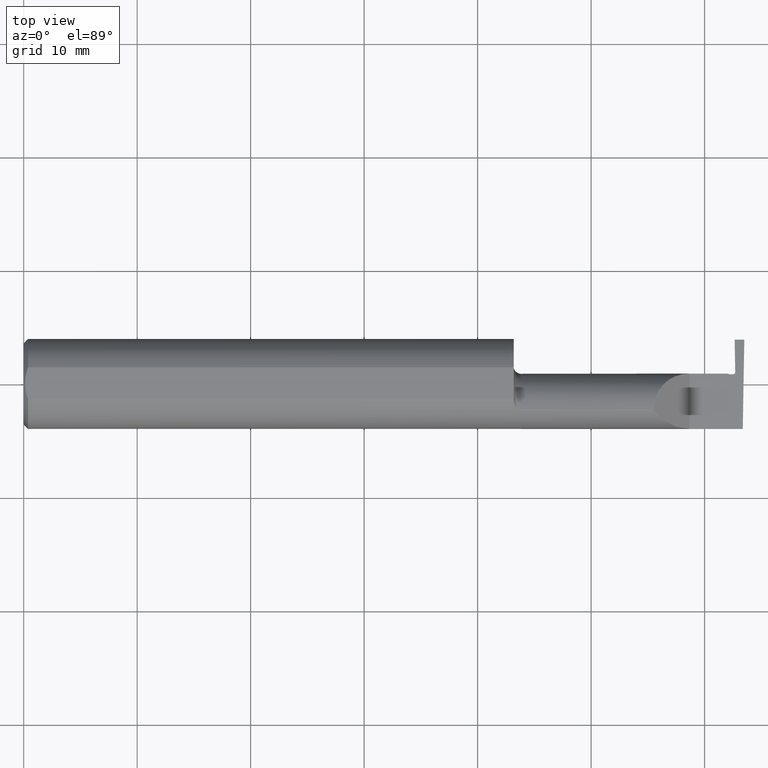
[diagram: clean part render]
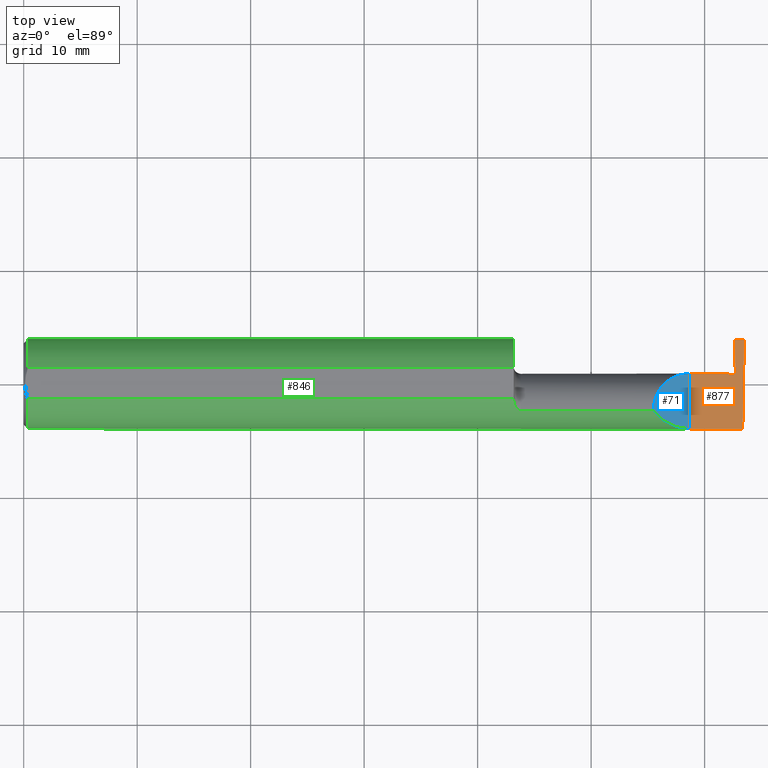
[diagram: same view with three faces highlighted in distinct colors, each labeled with its STEP entity id]
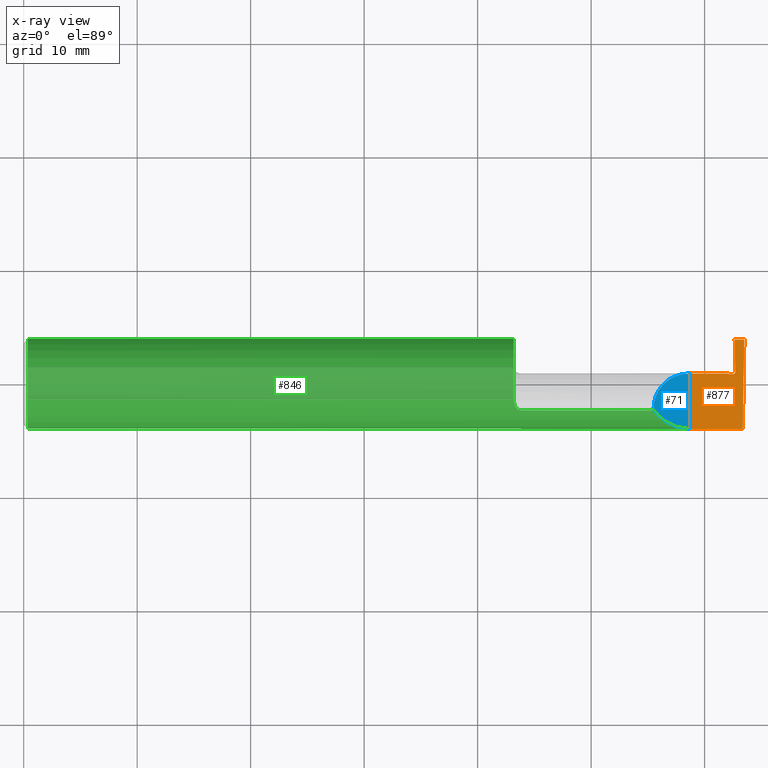
[diagram: x-ray of the same camera — body ghosted, the three highlighted faces saturated]
A machine part, top view with three faces highlighted in distinct colors.
The next image is the same camera in x-ray (body ghosted, the three faces saturated) — at least one of them is partly hidden behind the body in this view.
Their STEP definitions:

[orange] entity #877 — the highlighted planar face has unit normal (-0, 0, -1).
#6 = CARTESIAN_POINT ( 'NONE',  ( 2.310000000000000053, -0.2000000000000000111, 2.326828918379970872E-17 ) ) ;
#19 = CARTESIAN_POINT ( 'NONE',  ( 2.468542847896572301, 0.03686532263356515071, -1.229295649122165528E-10 ) ) ;
#36 = CARTESIAN_POINT ( 'NONE',  ( 2.500000000000000000, 0.1539000000000000090, 0.000000000000000000 ) ) ;
#47 = B_SPLINE_CURVE_WITH_KNOTS ( 'NONE', 1,
 ( #882, #893 ),
 .UNSPECIFIED., .F., .F.,
 ( 2, 2 ),
 ( 6.845491007851898374E-15, 0.002867533701434277216 ),
 .UNSPECIFIED. ) ;
#52 = DIRECTION ( 'NONE',  ( -1.224646799147353700E-16, 0.000000000000000000, -1.000000000000000000 ) ) ;
#60 = VERTEX_POINT ( 'NONE', #373 ) ;
#78 = B_SPLINE_CURVE_WITH_KNOTS ( 'NONE', 1,
 ( #391, #725 ),
 .UNSPECIFIED., .F., .F.,
 ( 2, 2 ),
 ( 0.000000000000000000, 0.0003802724434284338040 ),
 .UNSPECIFIED. ) ;
#99 = VERTEX_POINT ( 'NONE', #906 ) ;
#123 = PLANE ( 'NONE',  #972 ) ;
#172 = EDGE_CURVE ( 'NONE', #874, #1042, #752, .T. ) ;
#181 = ORIENTED_EDGE ( 'NONE', *, *, #1076, .F. ) ;
#189 = CARTESIAN_POINT ( 'NONE',  ( 2.468470289915451144, 0.04102216684466004210, -1.256631166235876803E-10 ) ) ;
#197 = ORIENTED_EDGE ( 'NONE', *, *, #361, .T. ) ;
#212 = DIRECTION ( 'NONE',  ( 1.000000000000000000, 0.000000000000000000, 0.000000000000000000 ) ) ;
#215 = ORIENTED_EDGE ( 'NONE', *, *, #634, .F. ) ;
#231 = FACE_OUTER_BOUND ( 'NONE', #929, .T. ) ;
#235 = LINE ( 'NONE', #732, #622 ) ;
#239 = VERTEX_POINT ( 'NONE', #385 ) ;
#242 = VECTOR ( 'NONE', #647, 39.37007874015748143 ) ;
#249 = LINE ( 'NONE', #6, #672 ) ;
#253 = B_SPLINE_CURVE_WITH_KNOTS ( 'NONE', 1,
 ( #832, #402 ),
 .UNSPECIFIED., .F., .F.,
 ( 2, 2 ),
 ( 0.000000000000000000, 7.184204902311108558E-05 ),
 .UNSPECIFIED. ) ;
#279 = VERTEX_POINT ( 'NONE', #707 ) ;
#292 = VECTOR ( 'NONE', #1032, 39.37007874015748143 ) ;
#307 = VERTEX_POINT ( 'NONE', #36 ) ;
#313 = CARTESIAN_POINT ( 'NONE',  ( 2.399999999999999911, 0.1539000000000000090, -2.694222958124035986E-19 ) ) ;
#337 = EDGE_CURVE ( 'NONE', #60, #585, #47, .T. ) ;
#343 = EDGE_CURVE ( 'NONE', #239, #279, #235, .T. ) ;
#345 = CARTESIAN_POINT ( 'NONE',  ( 2.465628833460029146, 0.03389999999987937385, -1.205295658583310168E-10 ) ) ;
#361 = EDGE_CURVE ( 'NONE', #99, #670, #78, .T. ) ;
#365 = LINE ( 'NONE', #773, #618 ) ;
#373 = CARTESIAN_POINT ( 'NONE',  ( 2.466499999986527136, 0.1539000000000000090, -2.694222958124035986E-19 ) ) ;
#377 = ORIENTED_EDGE ( 'NONE', *, *, #765, .F. ) ;
#385 = CARTESIAN_POINT ( 'NONE',  ( 2.310000000000000053, 0.03589999999999998748, 2.326828918379970872E-17 ) ) ;
#391 = CARTESIAN_POINT ( 'NONE',  ( 2.461471356043865466, 0.03389999999999760566, -4.703959171106423870E-11 ) ) ;
#392 = CARTESIAN_POINT ( 'NONE',  ( 2.500000000000000000, -0.2000000000000000111, 0.000000000000000000 ) ) ;
#402 = CARTESIAN_POINT ( 'NONE',  ( 2.444500000000001450, 0.03590000000000021646, 7.028497217765240013E-18 ) ) ;
#439 = ORIENTED_EDGE ( 'NONE', *, *, #337, .T. ) ;
#470 = CARTESIAN_POINT ( 'NONE',  ( 2.494588929872255001, -0.1561000000000000443, 0.000000000000000000 ) ) ;
#509 = ORIENTED_EDGE ( 'NONE', *, *, #343, .F. ) ;
#575 = EDGE_CURVE ( 'NONE', #585, #99, #758, .T. ) ;
#585 = VERTEX_POINT ( 'NONE', #189 ) ;
#604 = CARTESIAN_POINT ( 'NONE',  ( 2.461471356043865466, 0.03389999999999760566, -4.703959171106423870E-11 ) ) ;
#614 = ORIENTED_EDGE ( 'NONE', *, *, #788, .T. ) ;
#618 = VECTOR ( 'NONE', #856, 39.37007874015748143 ) ;
#622 = VECTOR ( 'NONE', #212, 39.37007874015748143 ) ;
#634 = EDGE_CURVE ( 'NONE', #307, #874, #365, .T. ) ;
#647 = DIRECTION ( 'NONE',  ( 1.000000000000000000, -0.000000000000000000, -0.000000000000000000 ) ) ;
#651 = ORIENTED_EDGE ( 'NONE', *, *, #172, .F. ) ;
#663 = CARTESIAN_POINT ( 'NONE',  ( 2.310000000000000053, -0.1560999999999999888, 2.326828918379970872E-17 ) ) ;
#670 = VERTEX_POINT ( 'NONE', #934 ) ;
#672 = VECTOR ( 'NONE', #918, 39.37007874015748143 ) ;
#693 = CARTESIAN_POINT ( 'NONE',  ( 3.749399456654646757E-32, -0.1560999999999999888, 3.061616997868384127E-16 ) ) ;
#707 = CARTESIAN_POINT ( 'NONE',  ( 2.444500000000001450, 0.03590000000000021646, 7.028497217765240013E-18 ) ) ;
#711 = ORIENTED_EDGE ( 'NONE', *, *, #575, .T. ) ;
#725 = CARTESIAN_POINT ( 'NONE',  ( 2.446500000003375419, 0.03390000000033663308, -4.831952167884444169E-11 ) ) ;
#732 = CARTESIAN_POINT ( 'NONE',  ( 1.699999999999999956, 0.03590000000000001523, 9.797174393178832313E-17 ) ) ;
#752 = LINE ( 'NONE', #693, #292 ) ;
#758 =( BOUNDED_CURVE ( )  B_SPLINE_CURVE ( 3, ( #870, #19, #345, #604 ),
 .UNSPECIFIED., .F., .F. ) 
 B_SPLINE_CURVE_WITH_KNOTS ( ( 4, 4 ),
 ( 8.673617379884047028E-19, 0.0002808519285672452697 ),
 .UNSPECIFIED. ) 
 CURVE ( )  GEOMETRIC_REPRESENTATION_ITEM ( )  RATIONAL_B_SPLINE_CURVE ( ( 1.000000000000000000, 0.8006061761999023751, 0.8006061761999023751, 1.000000000000000000 ) ) 
 REPRESENTATION_ITEM ( '' )  );
#765 = EDGE_CURVE ( 'NONE', #60, #307, #903, .T. ) ;
#773 = CARTESIAN_POINT ( 'NONE',  ( 2.500000000000000000, 0.1539000000000000090, 0.000000000000000000 ) ) ;
#788 = EDGE_CURVE ( 'NONE', #670, #279, #253, .T. ) ;
#832 = CARTESIAN_POINT ( 'NONE',  ( 2.446500000003375419, 0.03390000000033663308, -4.831952167884444169E-11 ) ) ;
#856 = DIRECTION ( 'NONE',  ( -0.01745240643727716603, -0.9998476951563912696, 0.000000000000000000 ) ) ;
#870 = CARTESIAN_POINT ( 'NONE',  ( 2.468470289915451144, 0.04102216684466004210, -1.256631166235876803E-10 ) ) ;
#874 = VERTEX_POINT ( 'NONE', #470 ) ;
#877 = ADVANCED_FACE ( 'NONE', ( #231 ), #123, .F. ) ;
#882 = CARTESIAN_POINT ( 'NONE',  ( 2.466499999986527136, 0.1539000000000000090, -2.694222958124035986E-19 ) ) ;
#893 = CARTESIAN_POINT ( 'NONE',  ( 2.468470289915451144, 0.04102216684466004210, -1.256631166235876803E-10 ) ) ;
#903 = LINE ( 'NONE', #313, #242 ) ;
#906 = CARTESIAN_POINT ( 'NONE',  ( 2.461471356043865466, 0.03389999999999760566, -4.703959171106423870E-11 ) ) ;
#918 = DIRECTION ( 'NONE',  ( -0.000000000000000000, 1.000000000000000000, -0.000000000000000000 ) ) ;
#929 = EDGE_LOOP ( 'NONE', ( #651, #215, #377, #439, #711, #197, #614, #509, #181 ) ) ;
#934 = CARTESIAN_POINT ( 'NONE',  ( 2.446500000003375419, 0.03390000000033663308, -4.831952167884444169E-11 ) ) ;
#966 = DIRECTION ( 'NONE',  ( -1.000000000000000000, 0.000000000000000000, 1.224646799147353700E-16 ) ) ;
#972 = AXIS2_PLACEMENT_3D ( 'NONE', #392, #52, #966 ) ;
#1032 = DIRECTION ( 'NONE',  ( -1.000000000000000000, -0.000000000000000000, -0.000000000000000000 ) ) ;
#1042 = VERTEX_POINT ( 'NONE', #663 ) ;
#1076 = EDGE_CURVE ( 'NONE', #1042, #239, #249, .T. ) ;

[blue] entity #71 — the highlighted planar face has unit normal (-0.7071, 0, -0.7071).
#1 = CARTESIAN_POINT ( 'NONE',  ( 2.310000000000000053, -0.1560999999999999888, 2.326828918379970872E-17 ) ) ;
#6 = CARTESIAN_POINT ( 'NONE',  ( 2.310000000000000053, -0.2000000000000000111, 2.326828918379970872E-17 ) ) ;
#28 = PLANE ( 'NONE',  #750 ) ;
#71 = ADVANCED_FACE ( 'NONE', ( #1046 ), #28, .F. ) ;
#86 =( BOUNDED_CURVE ( )  B_SPLINE_CURVE ( 3, ( #1, #1015, #990, #379 ),
 .UNSPECIFIED., .F., .T. ) 
 B_SPLINE_CURVE_WITH_KNOTS ( ( 4, 4 ),
 ( 4.712388980384689674, 5.640097190903853530 ),
 .UNSPECIFIED. ) 
 CURVE ( )  GEOMETRIC_REPRESENTATION_ITEM ( )  RATIONAL_B_SPLINE_CURVE ( ( 1.000000000000000000, 0.9295565493311498395, 0.9295565493311498395, 1.000000000000000000 ) ) 
 REPRESENTATION_ITEM ( '' )  );
#111 = CARTESIAN_POINT ( 'NONE',  ( 2.310000000000000053, 0.03589999999999998748, 2.326828918379970872E-17 ) ) ;
#136 = CARTESIAN_POINT ( 'NONE',  ( 2.310000000000000053, -0.2000000000000000111, 2.326828918379970872E-17 ) ) ;
#164 = ORIENTED_EDGE ( 'NONE', *, *, #490, .F. ) ;
#166 = CARTESIAN_POINT ( 'NONE',  ( 2.185000000000000941, -0.09060321336276840054, 0.1250000000000000278 ) ) ;
#195 =( BOUNDED_CURVE ( )  B_SPLINE_CURVE ( 3, ( #744, #241, #166, #1085 ),
 .UNSPECIFIED., .F., .T. ) 
 B_SPLINE_CURVE_WITH_KNOTS ( ( 4, 4 ),
 ( 6.247110142813122380, 6.283185307179586232 ),
 .UNSPECIFIED. ) 
 CURVE ( )  GEOMETRIC_REPRESENTATION_ITEM ( )  RATIONAL_B_SPLINE_CURVE ( ( 1.000000000000000000, 0.9998915514833921492, 0.9998915514833921492, 1.000000000000000000 ) ) 
 REPRESENTATION_ITEM ( '' )  );
#201 = EDGE_CURVE ( 'NONE', #1042, #388, #86, .T. ) ;
#239 = VERTEX_POINT ( 'NONE', #385 ) ;
#241 = CARTESIAN_POINT ( 'NONE',  ( 2.185027112864299959, -0.09210618219364782866, 0.1249728871357007748 ) ) ;
#249 = LINE ( 'NONE', #6, #672 ) ;
#328 = ORIENTED_EDGE ( 'NONE', *, *, #652, .F. ) ;
#353 = CARTESIAN_POINT ( 'NONE',  ( 2.185000000000000941, -0.01587669529663685714, 0.1250000000000000278 ) ) ;
#358 = CARTESIAN_POINT ( 'NONE',  ( 2.236776695296637474, 0.03590000000000000829, 0.07322330470336313457 ) ) ;
#379 = CARTESIAN_POINT ( 'NONE',  ( 2.185081329771848768, -0.09360841750841755737, 0.1249186702281519651 ) ) ;
#385 = CARTESIAN_POINT ( 'NONE',  ( 2.310000000000000053, 0.03589999999999998748, 2.326828918379970872E-17 ) ) ;
#388 = VERTEX_POINT ( 'NONE', #1003 ) ;
#461 = DIRECTION ( 'NONE',  ( -0.7071067811865492381, 0.000000000000000000, -0.7071067811865459074 ) ) ;
#468 = CARTESIAN_POINT ( 'NONE',  ( 2.185000000000000941, -0.08909999999999998477, 0.1250000000000000000 ) ) ;
#490 = EDGE_CURVE ( 'NONE', #388, #747, #195, .T. ) ;
#493 = ORIENTED_EDGE ( 'NONE', *, *, #201, .F. ) ;
#652 = EDGE_CURVE ( 'NONE', #747, #239, #844, .T. ) ;
#663 = CARTESIAN_POINT ( 'NONE',  ( 2.310000000000000053, -0.1560999999999999888, 2.326828918379970872E-17 ) ) ;
#672 = VECTOR ( 'NONE', #918, 39.37007874015748143 ) ;
#700 = ORIENTED_EDGE ( 'NONE', *, *, #1076, .T. ) ;
#744 = CARTESIAN_POINT ( 'NONE',  ( 2.185081329771848768, -0.09360841750841755737, 0.1249186702281519651 ) ) ;
#747 = VERTEX_POINT ( 'NONE', #468 ) ;
#750 = AXIS2_PLACEMENT_3D ( 'NONE', #136, #461, #968 ) ;
#777 = CARTESIAN_POINT ( 'NONE',  ( 2.185000000000000941, -0.08909999999999998477, 0.1250000000000000000 ) ) ;
#844 =( BOUNDED_CURVE ( )  B_SPLINE_CURVE ( 3, ( #777, #353, #358, #111 ),
 .UNSPECIFIED., .F., .T. ) 
 B_SPLINE_CURVE_WITH_KNOTS ( ( 4, 4 ),
 ( 0.000000000000000000, 1.570796326794896558 ),
 .UNSPECIFIED. ) 
 CURVE ( )  GEOMETRIC_REPRESENTATION_ITEM ( )  RATIONAL_B_SPLINE_CURVE ( ( 1.000000000000000000, 0.8047378541243649375, 0.8047378541243649375, 1.000000000000000000 ) ) 
 REPRESENTATION_ITEM ( '' )  );
#918 = DIRECTION ( 'NONE',  ( -0.000000000000000000, 1.000000000000000000, -0.000000000000000000 ) ) ;
#931 = EDGE_LOOP ( 'NONE', ( #164, #493, #700, #328 ) ) ;
#968 = DIRECTION ( 'NONE',  ( -0.7071067811865459074, 0.000000000000000000, 0.7071067811865492381 ) ) ;
#990 = CARTESIAN_POINT ( 'NONE',  ( 2.215117332916550552, -0.1336908980339254205, 0.09488266708345004241 ) ) ;
#1003 = CARTESIAN_POINT ( 'NONE',  ( 2.185081329771848768, -0.09360841750841755737, 0.1249186702281519651 ) ) ;
#1015 = CARTESIAN_POINT ( 'NONE',  ( 2.259912409421232837, -0.1560999999999999888, 0.05008759057876772947 ) ) ;
#1042 = VERTEX_POINT ( 'NONE', #663 ) ;
#1046 = FACE_OUTER_BOUND ( 'NONE', #931, .T. ) ;
#1076 = EDGE_CURVE ( 'NONE', #1042, #239, #249, .T. ) ;
#1085 = CARTESIAN_POINT ( 'NONE',  ( 2.185000000000000941, -0.08909999999999998477, 0.1250000000000000000 ) ) ;

[green] entity #846 — the highlighted cylindrical surface (partial cylindrical patch) has radius 3.9649 mm, axis along (-1, -0, -0).
#1 = CARTESIAN_POINT ( 'NONE',  ( 2.310000000000000053, -0.1560999999999999888, 2.326828918379970872E-17 ) ) ;
#18 = ORIENTED_EDGE ( 'NONE', *, *, #538, .F. ) ;
#26 = EDGE_CURVE ( 'NONE', #267, #1007, #270, .T. ) ;
#32 = B_SPLINE_CURVE_WITH_KNOTS ( 'NONE', 3,
 ( #661, #495, #82, #482, #1017, #414, #749, #755 ),
 .UNSPECIFIED., .F., .F.,
 ( 4, 2, 2, 4 ),
 ( 2.042507625483139074E-06, 0.0005263182385139235754, 0.0007884561039581438387, 0.001050593969402363994 ),
 .UNSPECIFIED. ) ;
#38 = CARTESIAN_POINT ( 'NONE',  ( 1.720364775055372553, -0.09360841750841757125, 0.1249186702281519512 ) ) ;
#40 = ORIENTED_EDGE ( 'NONE', *, *, #26, .F. ) ;
#41 = CARTESIAN_POINT ( 'NONE',  ( 1.708312875394041308, -0.08466547365232440781, -0.1311808389156051691 ) ) ;
#44 = CARTESIAN_POINT ( 'NONE',  ( 2.449421300275350877, -0.09360841750841730757, -0.1249186702281520206 ) ) ;
#48 = EDGE_LOOP ( 'NONE', ( #920, #1091, #1060, #431, #1055, #401, #975, #741, #150, #274, #317, #40, #223, #696, #168, #516, #640, #245, #18 ) ) ;
#49 = LINE ( 'NONE', #818, #1000 ) ;
#61 = CARTESIAN_POINT ( 'NONE',  ( 2.454544682360471963, -0.09587255434380594077, -0.1231895957532970348 ) ) ;
#74 = CARTESIAN_POINT ( 'NONE',  ( 1.720361275910303522, -0.09360841750841759901, -0.1249186702281519512 ) ) ;
#79 = VERTEX_POINT ( 'NONE', #287 ) ;
#80 = CARTESIAN_POINT ( 'NONE',  ( 0.000000000000000000, 0.000000000000000000, 0.000000000000000000 ) ) ;
#82 = CARTESIAN_POINT ( 'NONE',  ( 1.700844056398637116, -0.06777540567362902446, 0.1407770456887921517 ) ) ;
#85 = VERTEX_POINT ( 'NONE', #794 ) ;
#86 =( BOUNDED_CURVE ( )  B_SPLINE_CURVE ( 3, ( #1, #1015, #990, #379 ),
 .UNSPECIFIED., .F., .T. ) 
 B_SPLINE_CURVE_WITH_KNOTS ( ( 4, 4 ),
 ( 4.712388980384689674, 5.640097190903853530 ),
 .UNSPECIFIED. ) 
 CURVE ( )  GEOMETRIC_REPRESENTATION_ITEM ( )  RATIONAL_B_SPLINE_CURVE ( ( 1.000000000000000000, 0.9295565493311498395, 0.9295565493311498395, 1.000000000000000000 ) ) 
 REPRESENTATION_ITEM ( '' )  );
#122 = CARTESIAN_POINT ( 'NONE',  ( 1.712810002172886259, -0.08909999999996048858, -0.1281733201567834268 ) ) ;
#127 = CARTESIAN_POINT ( 'NONE',  ( 1.699999999999999956, 0.05497272050753900657, 0.1460999999999999799 ) ) ;
#135 = CARTESIAN_POINT ( 'NONE',  ( 1.712810002172222346, -0.08909999999984934138, 0.1281733201569306146 ) ) ;
#140 = DIRECTION ( 'NONE',  ( 0.000000000000000000, 0.000000000000000000, 1.000000000000000000 ) ) ;
#150 = ORIENTED_EDGE ( 'NONE', *, *, #1033, .F. ) ;
#151 = CARTESIAN_POINT ( 'NONE',  ( 1.716077244708472893, -0.09172492714866099794, -0.1263485955677197681 ) ) ;
#152 = CARTESIAN_POINT ( 'NONE',  ( 2.467958605918126214, -0.09612678835017125778, -0.1229930940699261593 ) ) ;
#165 = CARTESIAN_POINT ( 'NONE',  ( 2.470920899338892252, -0.09360841750841730757, -0.1249186702281520484 ) ) ;
#168 = ORIENTED_EDGE ( 'NONE', *, *, #839, .F. ) ;
#172 = EDGE_CURVE ( 'NONE', #874, #1042, #752, .T. ) ;
#198 = CIRCLE ( 'NONE', #369, 0.1560999999999999888 ) ;
#201 = EDGE_CURVE ( 'NONE', #1042, #388, #86, .T. ) ;
#204 = CARTESIAN_POINT ( 'NONE',  ( 1.700847904676645372, -0.06780574120017832107, -0.1407631332654325773 ) ) ;
#206 = CIRCLE ( 'NONE', #277, 0.1560999999999999888 ) ;
#220 = EDGE_CURVE ( 'NONE', #598, #822, #206, .T. ) ;
#223 = ORIENTED_EDGE ( 'NONE', *, *, #836, .F. ) ;
#224 = CARTESIAN_POINT ( 'NONE',  ( 2.462020501176412690, -0.09623425573207612660, -0.1229071927256228242 ) ) ;
#226 = CARTESIAN_POINT ( 'NONE',  ( 2.449883294675948786, -0.09430673936945621616, -0.1243953793205239688 ) ) ;
#234 = DIRECTION ( 'NONE',  ( -1.000000000000000000, -0.000000000000000000, -0.000000000000000000 ) ) ;
#240 = CARTESIAN_POINT ( 'NONE',  ( 0.01499999999999999944, -0.05497272050753900657, 0.1460999999999999799 ) ) ;
#245 = ORIENTED_EDGE ( 'NONE', *, *, #756, .F. ) ;
#258 = CARTESIAN_POINT ( 'NONE',  ( 2.470372502178056262, -0.09436783887071170662, -0.1243495941099337643 ) ) ;
#259 = DIRECTION ( 'NONE',  ( 0.000000000000000000, 0.000000000000000000, -1.000000000000000000 ) ) ;
#264 = CARTESIAN_POINT ( 'NONE',  ( 2.470920899338892252, -0.09360841750841730757, -0.1249186702281520484 ) ) ;
#267 = VERTEX_POINT ( 'NONE', #127 ) ;
#270 = LINE ( 'NONE', #508, #398 ) ;
#274 = ORIENTED_EDGE ( 'NONE', *, *, #220, .F. ) ;
#277 = AXIS2_PLACEMENT_3D ( 'NONE', #808, #819, #140 ) ;
#287 = CARTESIAN_POINT ( 'NONE',  ( 2.450806800179778477, -0.09569100258184319585, -0.1233306207917630876 ) ) ;
#292 = VECTOR ( 'NONE', #1032, 39.37007874015748143 ) ;
#302 = VERTEX_POINT ( 'NONE', #122 ) ;
#308 = CARTESIAN_POINT ( 'NONE',  ( 1.705057722617700611, -0.07943655142502260846, -0.1344116409581928018 ) ) ;
#317 = ORIENTED_EDGE ( 'NONE', *, *, #1005, .F. ) ;
#318 = CARTESIAN_POINT ( 'NONE',  ( 1.724999999999999867, -0.09360841750841747411, 0.1249186702281520206 ) ) ;
#321 = CARTESIAN_POINT ( 'NONE',  ( 0.000000000000000000, -0.05497272050753900657, 0.1460999999999999799 ) ) ;
#324 = DIRECTION ( 'NONE',  ( 0.000000000000000000, 0.000000000000000000, -1.000000000000000000 ) ) ;
#369 = AXIS2_PLACEMENT_3D ( 'NONE', #415, #1014, #992 ) ;
#370 = CARTESIAN_POINT ( 'NONE',  ( 1.710315048287043949, -0.08709553534231935512, -0.1295667287130568279 ) ) ;
#379 = CARTESIAN_POINT ( 'NONE',  ( 2.185081329771848768, -0.09360841750841755737, 0.1249186702281519651 ) ) ;
#383 = VERTEX_POINT ( 'NONE', #475 ) ;
#386 = CARTESIAN_POINT ( 'NONE',  ( 1.724999999999999867, -0.09360841750841747411, 0.1249186702281520206 ) ) ;
#388 = VERTEX_POINT ( 'NONE', #1003 ) ;
#398 = VECTOR ( 'NONE', #936, 39.37007874015748143 ) ;
#399 = CARTESIAN_POINT ( 'NONE',  ( 2.450806800179778477, -0.09569100258184319585, -0.1233306207917630876 ) ) ;
#401 = ORIENTED_EDGE ( 'NONE', *, *, #883, .F. ) ;
#403 = CARTESIAN_POINT ( 'NONE',  ( 2.469692882972973180, -0.09506542078539534368, -0.1238152914558943163 ) ) ;
#407 = DIRECTION ( 'NONE',  ( 1.000000000000000000, 0.000000000000000000, 0.000000000000000000 ) ) ;
#414 = CARTESIAN_POINT ( 'NONE',  ( 1.708314215045238837, -0.08466760255782122824, 0.1311795204669789217 ) ) ;
#415 = CARTESIAN_POINT ( 'NONE',  ( 0.01499999999999999944, 0.000000000000000000, 0.000000000000000000 ) ) ;
#431 = ORIENTED_EDGE ( 'NONE', *, *, #201, .T. ) ;
#457 = CIRCLE ( 'NONE', #1081, 0.1560999999999999888 ) ;
#463 = DIRECTION ( 'NONE',  ( 1.000000000000000000, 0.000000000000000000, 0.000000000000000000 ) ) ;
#465 = CARTESIAN_POINT ( 'NONE',  ( 1.699999999999999734, -0.05502817059483720158, -0.1460791239054557156 ) ) ;
#470 = CARTESIAN_POINT ( 'NONE',  ( 2.494588929872255001, -0.1561000000000000443, 0.000000000000000000 ) ) ;
#475 = CARTESIAN_POINT ( 'NONE',  ( 2.465758433798330707, -0.09641450834075608600, -0.1227658445228568540 ) ) ;
#480 = DIRECTION ( 'NONE',  ( 0.000000000000000000, 0.000000000000000000, 1.000000000000000000 ) ) ;
#482 = CARTESIAN_POINT ( 'NONE',  ( 1.703785422859118937, -0.07659497035394365050, 0.1360571150960169506 ) ) ;
#483 = EDGE_CURVE ( 'NONE', #1026, #753, #1008, .T. ) ;
#488 = CARTESIAN_POINT ( 'NONE',  ( 1.712810002172886259, -0.08909999999996048858, -0.1281733201567834268 ) ) ;
#494 = CARTESIAN_POINT ( 'NONE',  ( 1.724999999999999867, -0.09360841750841744635, -0.1249186702281520206 ) ) ;
#495 = CARTESIAN_POINT ( 'NONE',  ( 1.699999999999999289, -0.06156212810510084538, 0.1436177747480845979 ) ) ;
#502 = CARTESIAN_POINT ( 'NONE',  ( 2.465758433798330707, -0.09641450834075608600, -0.1227658445228568540 ) ) ;
#503 = DIRECTION ( 'NONE',  ( 1.000000000000000000, 0.000000000000000000, 0.000000000000000000 ) ) ;
#508 = CARTESIAN_POINT ( 'NONE',  ( 0.000000000000000000, 0.05497272050753900657, 0.1460999999999999799 ) ) ;
#516 = ORIENTED_EDGE ( 'NONE', *, *, #483, .F. ) ;
#521 = EDGE_CURVE ( 'NONE', #723, #85, #32, .T. ) ;
#527 =( BOUNDED_CURVE ( )  B_SPLINE_CURVE ( 3, ( #889, #1063, #814, #563 ),
 .UNSPECIFIED., .F., .F. ) 
 B_SPLINE_CURVE_WITH_KNOTS ( ( 4, 4 ),
 ( 0.05521439950980804034, 0.9829226100289724100 ),
 .UNSPECIFIED. ) 
 CURVE ( )  GEOMETRIC_REPRESENTATION_ITEM ( )  RATIONAL_B_SPLINE_CURVE ( ( 1.000000000000000000, 0.9295565493311498395, 0.9295565493311498395, 1.000000000000000000 ) ) 
 REPRESENTATION_ITEM ( '' )  );
#536 = CARTESIAN_POINT ( 'NONE',  ( 1.699999999999999734, -0.05502817059483720158, 0.1460791239054557156 ) ) ;
#538 = EDGE_CURVE ( 'NONE', #831, #383, #729, .T. ) ;
#544 = CARTESIAN_POINT ( 'NONE',  ( 2.464512453544993598, -0.09635449354740048544, -0.1228129773130644253 ) ) ;
#546 = CARTESIAN_POINT ( 'NONE',  ( 2.450345122212929105, -0.09500094058780107764, -0.1238660330326939868 ) ) ;
#554 = VERTEX_POINT ( 'NONE', #591 ) ;
#555 = CARTESIAN_POINT ( 'NONE',  ( 2.460151538880410715, -0.09614402534613833429, -0.1229778415936229746 ) ) ;
#561 = CARTESIAN_POINT ( 'NONE',  ( 2.456413632544129033, -0.09596309661999688490, -0.1231190240665558377 ) ) ;
#563 = CARTESIAN_POINT ( 'NONE',  ( 2.494588929872255001, -0.1561000000000000443, 0.000000000000000000 ) ) ;
#566 = CARTESIAN_POINT ( 'NONE',  ( 2.452675738242223069, -0.09578185624603499648, -0.1232601283369376410 ) ) ;
#572 = LINE ( 'NONE', #823, #631 ) ;
#591 = CARTESIAN_POINT ( 'NONE',  ( 2.492408115719126460, -0.09360841750841747411, -0.1249186702281520206 ) ) ;
#598 = VERTEX_POINT ( 'NONE', #1043 ) ;
#631 = VECTOR ( 'NONE', #659, 39.37007874015748143 ) ;
#633 = CARTESIAN_POINT ( 'NONE',  ( 2.463266476005208983, -0.09629440932100168105, -0.1228600934816201778 ) ) ;
#640 = ORIENTED_EDGE ( 'NONE', *, *, #946, .F. ) ;
#649 = CARTESIAN_POINT ( 'NONE',  ( 1.699999999999999956, 0.000000000000000000, 0.000000000000000000 ) ) ;
#653 = CARTESIAN_POINT ( 'NONE',  ( 2.450806800179778477, -0.09569100258184319585, -0.1233306207917630876 ) ) ;
#659 = DIRECTION ( 'NONE',  ( -1.000000000000000000, -0.000000000000000000, -0.000000000000000000 ) ) ;
#661 = CARTESIAN_POINT ( 'NONE',  ( 1.699999999999999734, -0.05502817059483720158, 0.1460791239054557156 ) ) ;
#663 = CARTESIAN_POINT ( 'NONE',  ( 2.310000000000000053, -0.1560999999999999888, 2.326828918379970872E-17 ) ) ;
#669 = B_SPLINE_CURVE_WITH_KNOTS ( 'NONE', 3,
 ( #399, #546, #226, #44 ),
 .UNSPECIFIED., .F., .F.,
 ( 4, 4 ),
 ( 0.000000000000000000, 7.520563975082667787E-05 ),
 .UNSPECIFIED. ) ;
#671 = DIRECTION ( 'NONE',  ( -1.000000000000000000, -0.000000000000000000, -0.000000000000000000 ) ) ;
#678 = CIRCLE ( 'NONE', #833, 0.1560999999999999888 ) ;
#693 = CARTESIAN_POINT ( 'NONE',  ( 3.749399456654646757E-32, -0.1560999999999999888, 3.061616997868384127E-16 ) ) ;
#696 = ORIENTED_EDGE ( 'NONE', *, *, #720, .F. ) ;
#712 = CARTESIAN_POINT ( 'NONE',  ( 1.703804698179400390, -0.07664326672408303120, -0.1360300949145557547 ) ) ;
#720 = EDGE_CURVE ( 'NONE', #302, #980, #1036, .T. ) ;
#723 = VERTEX_POINT ( 'NONE', #536 ) ;
#729 = B_SPLINE_CURVE_WITH_KNOTS ( 'NONE', 3,
 ( #264, #258, #403, #152, #840, #502 ),
 .UNSPECIFIED., .F., .F.,
 ( 4, 2, 4 ),
 ( 0.0002236906814576222866, 0.0003060031443916449664, 0.0003883156073256676462 ),
 .UNSPECIFIED. ) ;
#733 = EDGE_CURVE ( 'NONE', #827, #388, #49, .T. ) ;
#734 = CARTESIAN_POINT ( 'NONE',  ( 1.716072683443917946, -0.09172126259464279119, 0.1263511429915041839 ) ) ;
#736 = VERTEX_POINT ( 'NONE', #1049 ) ;
#737 = CYLINDRICAL_SURFACE ( 'NONE', #779, 0.1560999999999999888 ) ;
#741 = ORIENTED_EDGE ( 'NONE', *, *, #1040, .F. ) ;
#748 = B_SPLINE_CURVE_WITH_KNOTS ( 'NONE', 3,
 ( #1061, #544, #633, #224, #555, #796, #561, #61, #566, #653 ),
 .UNSPECIFIED., .F., .F.,
 ( 4, 3, 3, 4 ),
 ( 0.000000000000000000, 9.512159469260359206E-05, 0.0002378039910551556116, 0.0003804863916248924297 ),
 .UNSPECIFIED. ) ;
#749 = CARTESIAN_POINT ( 'NONE',  ( 1.710319203512566277, -0.08709887368156789267, 0.1295644080582773749 ) ) ;
#752 = LINE ( 'NONE', #693, #292 ) ;
#753 = VERTEX_POINT ( 'NONE', #875 ) ;
#755 = CARTESIAN_POINT ( 'NONE',  ( 1.712810002172222346, -0.08909999999984934138, 0.1281733201569306146 ) ) ;
#756 = EDGE_CURVE ( 'NONE', #383, #79, #748, .T. ) ;
#779 = AXIS2_PLACEMENT_3D ( 'NONE', #80, #234, #480 ) ;
#794 = CARTESIAN_POINT ( 'NONE',  ( 1.712810002172222346, -0.08909999999984934138, 0.1281733201569306146 ) ) ;
#796 = CARTESIAN_POINT ( 'NONE',  ( 2.458282582672677741, -0.09605363889351807571, -0.1230484523818955317 ) ) ;
#808 = CARTESIAN_POINT ( 'NONE',  ( 0.01499999999999999944, 0.000000000000000000, 0.000000000000000000 ) ) ;
#814 = CARTESIAN_POINT ( 'NONE',  ( 2.493277140361873201, -0.1561000000000000165, -0.05008759057876776416 ) ) ;
#818 = CARTESIAN_POINT ( 'NONE',  ( 2.093249999999999833, -0.09360841750841747411, 0.1249186702281520206 ) ) ;
#819 = DIRECTION ( 'NONE',  ( -1.000000000000000000, -0.000000000000000000, -0.000000000000000000 ) ) ;
#822 = VERTEX_POINT ( 'NONE', #240 ) ;
#823 = CARTESIAN_POINT ( 'NONE',  ( 2.093249999999999833, -0.09360841750841747411, -0.1249186702281520206 ) ) ;
#824 = CARTESIAN_POINT ( 'NONE',  ( 2.449421300275350877, -0.09360841750841730757, -0.1249186702281520206 ) ) ;
#827 = VERTEX_POINT ( 'NONE', #318 ) ;
#828 = FACE_OUTER_BOUND ( 'NONE', #48, .T. ) ;
#831 = VERTEX_POINT ( 'NONE', #165 ) ;
#833 = AXIS2_PLACEMENT_3D ( 'NONE', #1072, #407, #324 ) ;
#836 = EDGE_CURVE ( 'NONE', #980, #267, #678, .T. ) ;
#839 = EDGE_CURVE ( 'NONE', #753, #302, #905, .T. ) ;
#840 = CARTESIAN_POINT ( 'NONE',  ( 2.466870854321840056, -0.09646808989141875124, -0.1227237640982618699 ) ) ;
#846 = ADVANCED_FACE ( 'NONE', ( #828 ), #737, .T. ) ;
#847 = LINE ( 'NONE', #321, #994 ) ;
#851 = EDGE_CURVE ( 'NONE', #554, #831, #572, .T. ) ;
#854 = B_SPLINE_CURVE_WITH_KNOTS ( 'NONE', 3,
 ( #135, #734, #38, #386 ),
 .UNSPECIFIED., .F., .F.,
 ( 4, 4 ),
 ( 0.001050593969402363994, 0.001393966686689414704 ),
 .UNSPECIFIED. ) ;
#874 = VERTEX_POINT ( 'NONE', #470 ) ;
#875 = CARTESIAN_POINT ( 'NONE',  ( 1.724999999999999867, -0.09360841750841744635, -0.1249186702281520206 ) ) ;
#883 = EDGE_CURVE ( 'NONE', #85, #827, #854, .T. ) ;
#887 = CARTESIAN_POINT ( 'NONE',  ( 1.712810002172886259, -0.08909999999996048858, -0.1281733201567834268 ) ) ;
#889 = CARTESIAN_POINT ( 'NONE',  ( 2.492408115719126460, -0.09360841750841747411, -0.1249186702281520206 ) ) ;
#901 = EDGE_CURVE ( 'NONE', #554, #874, #527, .T. ) ;
#905 = B_SPLINE_CURVE_WITH_KNOTS ( 'NONE', 3,
 ( #494, #74, #151, #488 ),
 .UNSPECIFIED., .F., .F.,
 ( 4, 4 ),
 ( 1.958690481382186847E-07, 0.0003463854958010656741 ),
 .UNSPECIFIED. ) ;
#907 = VECTOR ( 'NONE', #671, 39.37007874015748143 ) ;
#911 = DIRECTION ( 'NONE',  ( 1.000000000000000000, 0.000000000000000000, 0.000000000000000000 ) ) ;
#915 = CARTESIAN_POINT ( 'NONE',  ( 2.093249999999999833, -0.09360841750841747411, -0.1249186702281520206 ) ) ;
#920 = ORIENTED_EDGE ( 'NONE', *, *, #851, .F. ) ;
#936 = DIRECTION ( 'NONE',  ( -1.000000000000000000, -0.000000000000000000, -0.000000000000000000 ) ) ;
#946 = EDGE_CURVE ( 'NONE', #79, #1026, #669, .T. ) ;
#963 = CARTESIAN_POINT ( 'NONE',  ( 1.699999999999999067, -0.06152246774674052093, -0.1436327148497735240 ) ) ;
#975 = ORIENTED_EDGE ( 'NONE', *, *, #521, .F. ) ;
#980 = VERTEX_POINT ( 'NONE', #465 ) ;
#990 = CARTESIAN_POINT ( 'NONE',  ( 2.215117332916550552, -0.1336908980339254205, 0.09488266708345004241 ) ) ;
#992 = DIRECTION ( 'NONE',  ( 0.000000000000000000, 0.000000000000000000, 1.000000000000000000 ) ) ;
#994 = VECTOR ( 'NONE', #503, 39.37007874015748143 ) ;
#1000 = VECTOR ( 'NONE', #463, 39.37007874015748143 ) ;
#1003 = CARTESIAN_POINT ( 'NONE',  ( 2.185081329771848768, -0.09360841750841755737, 0.1249186702281519651 ) ) ;
#1005 = EDGE_CURVE ( 'NONE', #1007, #598, #198, .T. ) ;
#1007 = VERTEX_POINT ( 'NONE', #1086 ) ;
#1008 = LINE ( 'NONE', #915, #907 ) ;
#1014 = DIRECTION ( 'NONE',  ( -1.000000000000000000, -0.000000000000000000, -0.000000000000000000 ) ) ;
#1015 = CARTESIAN_POINT ( 'NONE',  ( 2.259912409421232837, -0.1560999999999999888, 0.05008759057876772947 ) ) ;
#1017 = CARTESIAN_POINT ( 'NONE',  ( 1.705056522840238120, -0.07943464720522702693, 0.1344128205797975040 ) ) ;
#1026 = VERTEX_POINT ( 'NONE', #824 ) ;
#1032 = DIRECTION ( 'NONE',  ( -1.000000000000000000, -0.000000000000000000, -0.000000000000000000 ) ) ;
#1033 = EDGE_CURVE ( 'NONE', #822, #736, #847, .T. ) ;
#1036 = B_SPLINE_CURVE_WITH_KNOTS ( 'NONE', 3,
 ( #887, #370, #41, #308, #712, #204, #963, #1056 ),
 .UNSPECIFIED., .F., .F.,
 ( 4, 2, 2, 4 ),
 ( 0.0003463854958010656741, 0.0006107451645895158390, 0.0008751048333779660581, 0.001403824170954859774 ),
 .UNSPECIFIED. ) ;
#1040 = EDGE_CURVE ( 'NONE', #736, #723, #457, .T. ) ;
#1042 = VERTEX_POINT ( 'NONE', #663 ) ;
#1043 = CARTESIAN_POINT ( 'NONE',  ( 0.01499999999999999944, 0.000000000000000000, -0.1560999999999999888 ) ) ;
#1049 = CARTESIAN_POINT ( 'NONE',  ( 1.699999999999999956, -0.05497272050753899270, 0.1460999999999999799 ) ) ;
#1055 = ORIENTED_EDGE ( 'NONE', *, *, #733, .F. ) ;
#1056 = CARTESIAN_POINT ( 'NONE',  ( 1.699999999999999734, -0.05502817059483720158, -0.1460791239054557156 ) ) ;
#1060 = ORIENTED_EDGE ( 'NONE', *, *, #172, .T. ) ;
#1061 = CARTESIAN_POINT ( 'NONE',  ( 2.465758433798330707, -0.09641450834075608600, -0.1227658445228568540 ) ) ;
#1063 = CARTESIAN_POINT ( 'NONE',  ( 2.492495113650786021, -0.1336908980339254205, -0.09488266708345007017 ) ) ;
#1072 = CARTESIAN_POINT ( 'NONE',  ( 1.699999999999999956, 0.000000000000000000, 0.000000000000000000 ) ) ;
#1081 = AXIS2_PLACEMENT_3D ( 'NONE', #649, #911, #259 ) ;
#1086 = CARTESIAN_POINT ( 'NONE',  ( 0.01499999999999999771, 0.05497272050753900657, 0.1460999999999999799 ) ) ;
#1091 = ORIENTED_EDGE ( 'NONE', *, *, #901, .T. ) ;